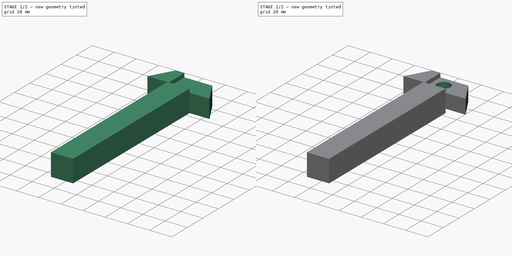
[diagram: build sequence overview — one tinted view per stage of 2, left to right]
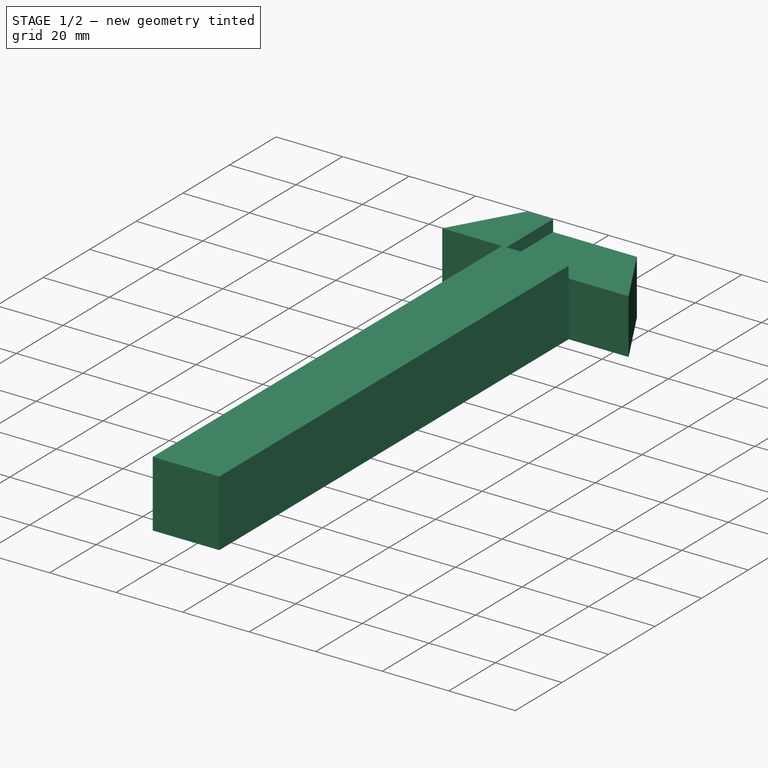
[diagram: stage 1 of 2 — iso view after this stage's code; geometry added in this stage tinted green]
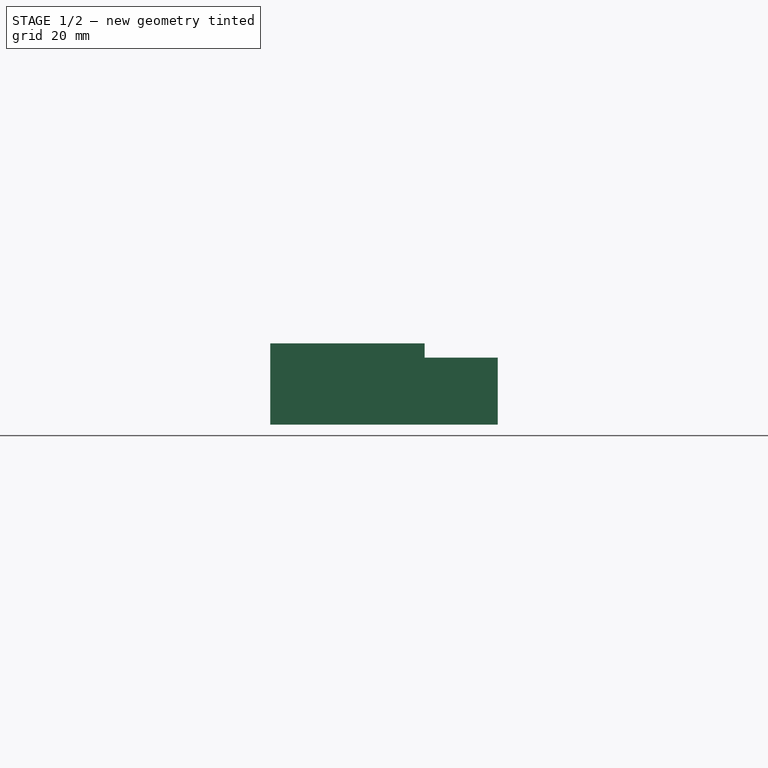
[diagram: stage 1 of 2 — front view after this stage's code; geometry added in this stage tinted green]
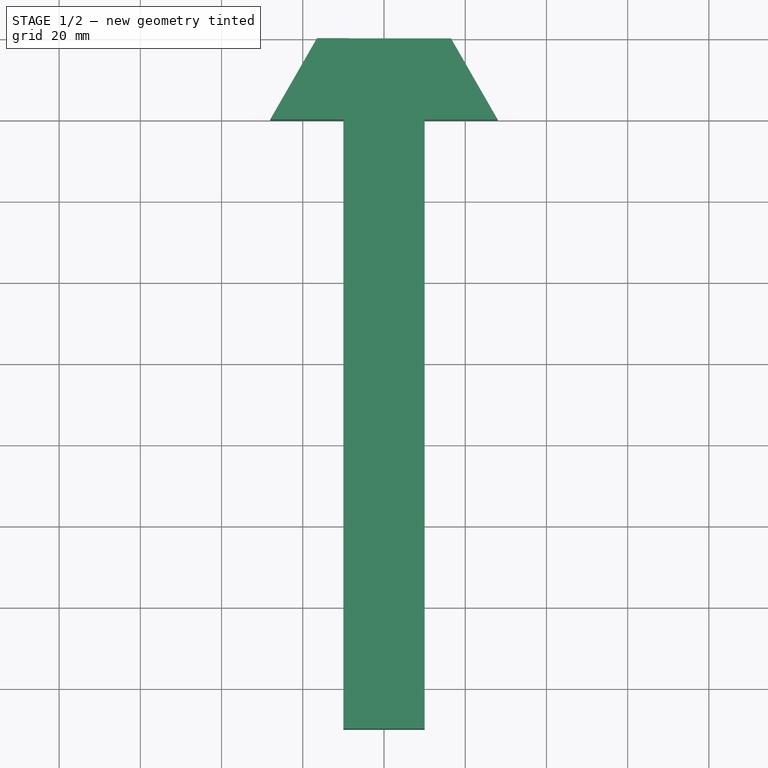
[diagram: stage 1 of 2 — top view after this stage's code; geometry added in this stage tinted green]
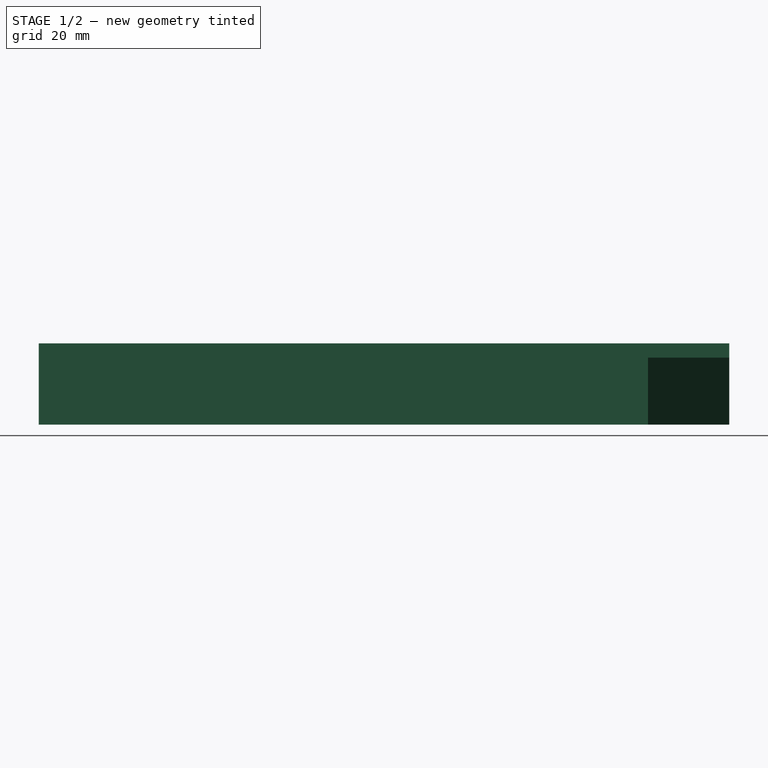
[diagram: stage 1 of 2 — right view after this stage's code; geometry added in this stage tinted green]
FCSTD DOCUMENT  (FreeCAD 0.20R29177 +426 (Git))
Label: front_handle
License: All rights reserved
LicenseURL: http://en.wikipedia.org/wiki/All_rights_reserved
objects: Sketcher::SketchObject×6, PartDesign::Pocket×3, PartDesign::SubShapeBinder×1, PartDesign::Pad×1, PartDesign::Body×1
note: 16 computed .brp shape members not serialized (recipe doc carries the construction recipe); baked Part::Feature solids carry a one-line shape summary decoded from their .brp

FEATURE [Sketcher::SketchObject] Sketch  label="masterSketch"
  FullyConstrained = true
  sketch-geometry (10):
    g0: LineSegment StartX=-28 StartY=6.04e-13 StartZ=0 EndX=-10 EndY=6.04e-13 EndZ=0
    g1: LineSegment StartX=28 StartY=0 StartZ=0 EndX=16.5 EndY=20 EndZ=0
    g2: LineSegment StartX=16.5 StartY=20 StartZ=0 EndX=-16.5 EndY=20 EndZ=0
    g3: LineSegment StartX=-16.5 StartY=20 StartZ=0 EndX=-28 EndY=6.04e-13 EndZ=0
    g4: GeomPoint X=0 Y=20 Z=0
    g5: GeomPoint X=0 Y=6.038e-13 Z=0
    g6: LineSegment StartX=-10 StartY=6.04e-13 StartZ=0 EndX=-10 EndY=-150 EndZ=0
    g7: LineSegment StartX=-10 StartY=-150 StartZ=0 EndX=10 EndY=-150 EndZ=0
    g8: LineSegment StartX=10 StartY=-150 StartZ=0 EndX=10 EndY=5.969e-13 EndZ=0
    g9: LineSegment StartX=10 StartY=5.969e-13 StartZ=0 EndX=28 EndY=0 EndZ=0
  constraints (25):
    c: Coincident(g9,g1)
    c: Coincident(g1,g2)
    c: Coincident(g2,g3)
    c: Coincident(g3,g0)
    c: Horizontal(g0)
    c: Horizontal(g2)
    c: PointOnObject(g9,g-1)
    c: DistanceX(g2,g2) = 33
    c: DistanceX(g0,g9) = 56
    c: Symmetric(g1,g2,g4)
    c: Symmetric(g9,g0,g5)
    c: Vertical(g5,g4)
    c: DistanceY(g5,g4) = 20
    c: PointOnObject(g4,g-2)
    c: Vertical(g6)
    c: Coincident(g6,g7)
    c: Horizontal(g7)
    c: Coincident(g7,g8)
    c: Symmetric(g8,g6,g5)
    c: Coincident(g0,g6)
    c: Coincident(g9,g8)
    c: Equal(g8,g6)
    c: Vertical(g8)
    c: DistanceX(g0,g8) = 20
    c: DistanceY(g8,g8) = 150
FEATURE [PartDesign::SubShapeBinder] Binder
  BindCopyOnChange = 0
  BindMode = 0
  ClaimChildren = false
  Context = -> Body [Binder.]
  Fuse = false
  MakeFace = true
  OffsetFill = false
  OffsetIntersection = false
  OffsetJoinType = 0
  OffsetOpenResult = false
  PartialLoad = false
  Relative = true
  Support = -> [Sketch]
  _Version = 2
FEATURE [Sketcher::SketchObject] Sketch001
  ExternalGeometry = -> [Binder]
  FullyConstrained = true
  MapMode = 5
  Support = -> [XY_Plane]
  sketch-geometry (8):
    g0: LineSegment StartX=-16.5 StartY=20 StartZ=0 EndX=16.5 EndY=20 EndZ=0
    g1: LineSegment StartX=16.5 StartY=20 StartZ=0 EndX=28 EndY=0 EndZ=0
    g2: LineSegment StartX=28 StartY=0 StartZ=0 EndX=10 EndY=3.411e-13 EndZ=0
    g3: LineSegment StartX=10 StartY=3.411e-13 StartZ=0 EndX=10 EndY=-150 EndZ=0
    g4: LineSegment StartX=10 StartY=-150 StartZ=0 EndX=-10 EndY=-150 EndZ=0
    g5: LineSegment StartX=-10 StartY=-150 StartZ=0 EndX=-10 EndY=2.842e-13 EndZ=0
    g6: LineSegment StartX=-10 StartY=2.842e-13 StartZ=0 EndX=-28 EndY=2.949e-13 EndZ=0
    g7: LineSegment StartX=-28 StartY=2.949e-13 StartZ=0 EndX=-16.5 EndY=20 EndZ=0
  constraints (16):
    c: Coincident(g-5,g0)
    c: Coincident(g0,g-4)
    c: Coincident(g0,g1)
    c: Coincident(g1,g-9)
    c: Coincident(g1,g2)
    c: Coincident(g2,g-9)
    c: Coincident(g2,g3)
    c: Coincident(g3,g-10)
    c: Coincident(g3,g4)
    c: Coincident(g4,g-10)
    c: Coincident(g4,g5)
    c: Coincident(g5,g-7)
    c: Coincident(g5,g6)
    c: Coincident(g6,g-6)
    c: Coincident(g6,g7)
    c: Coincident(g7,g0)
FEATURE [PartDesign::Pad] Pad
  Direction = (0,0,1)
  Length = 20
  Length2 = 10
  Profile = -> Sketch001
  ReferenceAxis = -> Sketch001 [N_Axis]
  Type = 0
FEATURE [Sketcher::SketchObject] Sketch002
  ExternalGeometry = -> [Pad]
  FullyConstrained = true
  MapMode = 5
  Placement = pos=(0,0,20) rot=(0,0,1;0rad)
  Support = -> [Pad]
  sketch-geometry (4):
    g0: LineSegment StartX=28 StartY=0 StartZ=0 EndX=-8.68 EndY=0 EndZ=0
    g1: LineSegment StartX=-8.68 StartY=0 StartZ=0 EndX=-8.68 EndY=20 EndZ=0
    g2: LineSegment StartX=-8.68 StartY=20 StartZ=0 EndX=16.5 EndY=20 EndZ=0
    g3: LineSegment StartX=16.5 StartY=20 StartZ=0 EndX=28 EndY=0 EndZ=0
  constraints (10):
    c: Coincident(g-4,g0)
    c: PointOnObject(g0,g-1)
    c: Coincident(g0,g1)
    c: PointOnObject(g1,g-5)
    c: Vertical(g1)
    c: Coincident(g1,g2)
    c: Coincident(g2,g-5)
    c: Coincident(g2,g3)
    c: Coincident(g3,g0)
    c: DistanceX(g0,g0) = 36.68
FEATURE [PartDesign::Pocket] Pocket
  BaseFeature = -> Pad
  Direction = (0,0,-1)
  Length = 3.5
  Length2 = 5
  Profile = -> Sketch002
  ReferenceAxis = -> Sketch002 [N_Axis]
  Type = 0
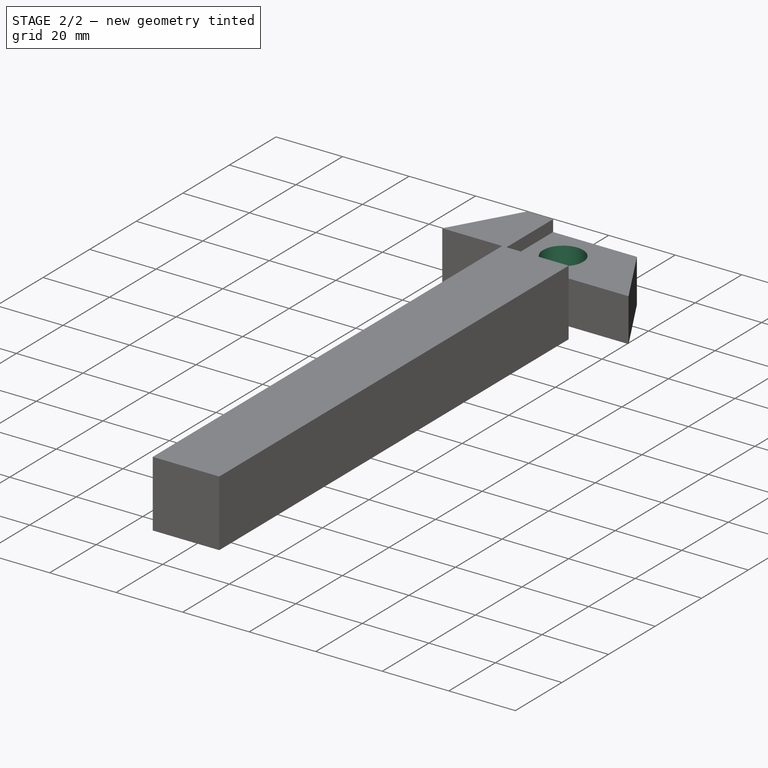
[diagram: stage 2 of 2 — iso view after this stage's code; geometry added in this stage tinted green]
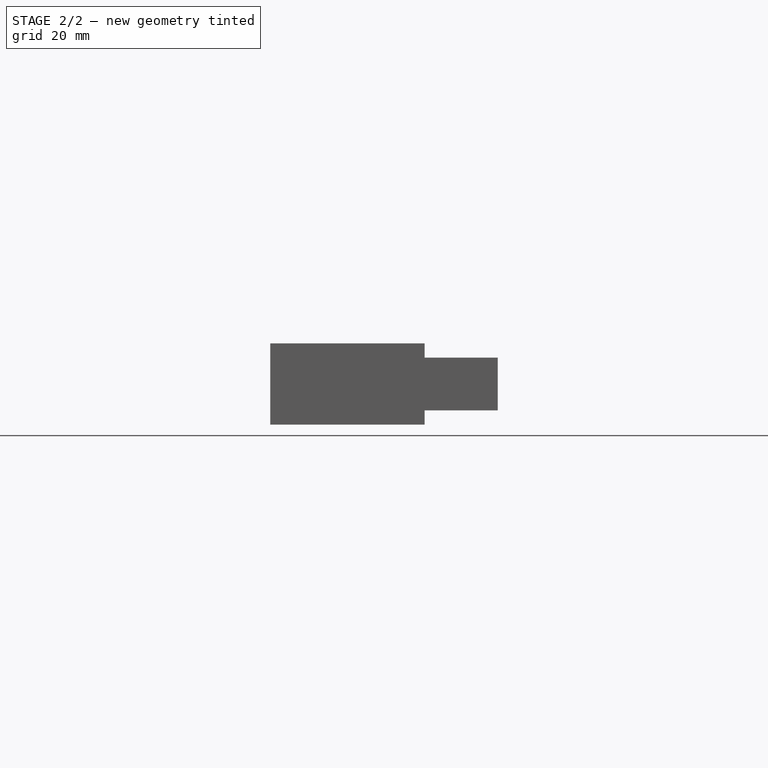
[diagram: stage 2 of 2 — front view after this stage's code; geometry added in this stage tinted green]
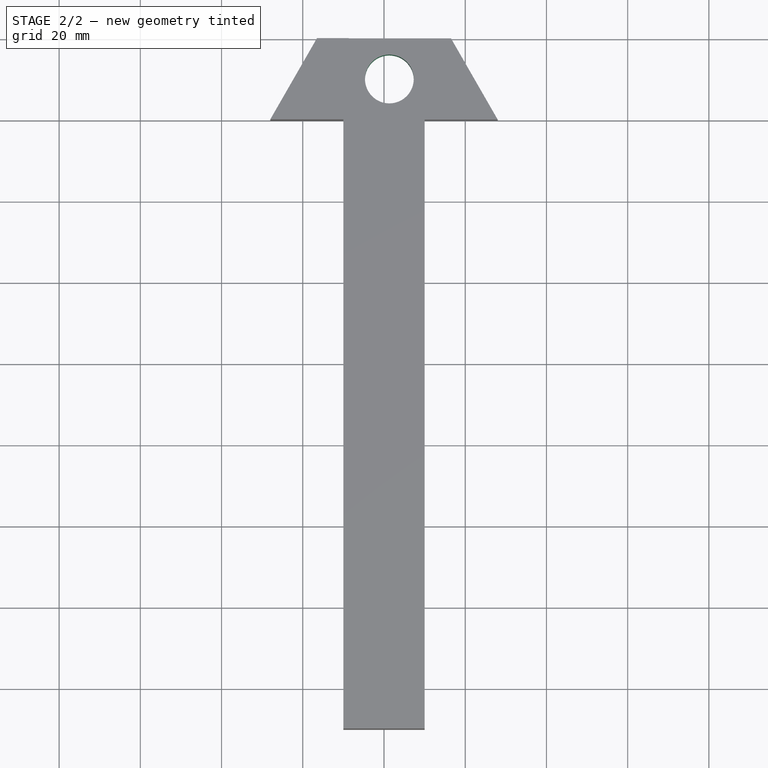
[diagram: stage 2 of 2 — top view after this stage's code; geometry added in this stage tinted green]
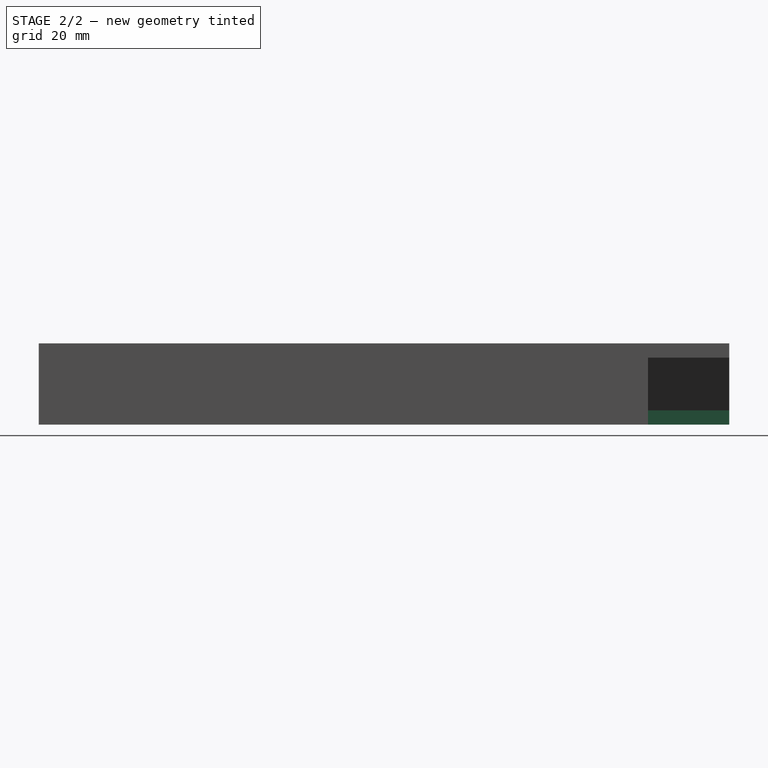
[diagram: stage 2 of 2 — right view after this stage's code; geometry added in this stage tinted green]
FEATURE [Sketcher::SketchObject] Sketch003
  ExternalGeometry = -> [Pocket]
  FullyConstrained = true
  MapMode = 5
  Placement = pos=(0,0,0) rot=(1,0,0;3.14159rad)
  Support = -> [Pocket]
  sketch-geometry (4):
    g0: LineSegment StartX=28 StartY=0 StartZ=0 EndX=-8.68 EndY=0 EndZ=0
    g1: LineSegment StartX=-8.68 StartY=0 StartZ=0 EndX=-8.68 EndY=-20 EndZ=0
    g2: LineSegment StartX=-8.68 StartY=-20 StartZ=0 EndX=16.5 EndY=-20 EndZ=0
    g3: LineSegment StartX=16.5 StartY=-20 StartZ=0 EndX=28 EndY=0 EndZ=0
  constraints (10):
    c: Coincident(g0,g-3)
    c: PointOnObject(g0,g-1)
    c: Coincident(g0,g1)
    c: Coincident(g1,g2)
    c: Coincident(g2,g-5)
    c: Horizontal(g2)
    c: Coincident(g2,g3)
    c: Coincident(g3,g0)
    c: Vertical(g1)
    c: DistanceX(g0,g0) = 36.68
FEATURE [PartDesign::Pocket] Pocket001
  BaseFeature = -> Pocket
  Direction = (0,0,1)
  Length = 3.5
  Length2 = 5
  Profile = -> Sketch003
  ReferenceAxis = -> Sketch003 [N_Axis]
  Type = 0
FEATURE [Sketcher::SketchObject] Sketch004
  ExternalGeometry = -> [Pocket001]
  FullyConstrained = true
  MapMode = 5
  Placement = pos=(0,0,16.5) rot=(0,0,1;0rad)
  Support = -> [Pocket001]
  sketch-geometry (4):
    g0: Circle CenterX=1.32 CenterY=10 CenterZ=0 NormalX=0 NormalY=0 NormalZ=1 AngleXU=0 Radius=6
    g1: GeomPoint X=-4.68 Y=10 Z=0
    g2: GeomPoint X=1.32 Y=20 Z=0
    g3: GeomPoint X=1.32 Y=0 Z=0
  constraints (8):
    c: Radius(g0) = 6
    c: PointOnObject(g1,g0)
    c: Horizontal(g0,g1)
    c: DistanceX(g-3,g1) = 4
    c: PointOnObject(g2,g-4)
    c: PointOnObject(g3,g-1)
    c: Vertical(g2,g3)
    c: Symmetric(g2,g3,g0)
FEATURE [PartDesign::Pocket] Pocket002
  BaseFeature = -> Pocket001
  Direction = (0,0,-1)
  Length = 5
  Length2 = 5
  Profile = -> Sketch004
  ReferenceAxis = -> Sketch004 [N_Axis]
  Type = 1
FEATURE [Sketcher::SketchObject] Sketch005
  ExternalGeometry = -> [Pocket002]
  FullyConstrained = true
  MapMode = 5
  Placement = pos=(0,-150,0) rot=(1,0,0;1.5708rad)
  Support = -> [Pocket002]
  sketch-geometry (6):
    g0: LineSegment StartX=-9 StartY=19 StartZ=0 EndX=-9 EndY=1 EndZ=0
    g1: LineSegment StartX=-9 StartY=1 StartZ=0 EndX=9 EndY=1 EndZ=0
    g2: LineSegment StartX=9 StartY=1 StartZ=0 EndX=9 EndY=19 EndZ=0
    g3: LineSegment StartX=9 StartY=19 StartZ=0 EndX=-9 EndY=19 EndZ=0
    g4: GeomPoint X=0 Y=10 Z=0
    g5: GeomPoint X=0 Y=20 Z=0
  constraints (14):
    c: Coincident(g0,g1)
    c: Coincident(g1,g2)
    c: Coincident(g2,g3)
    c: Coincident(g3,g0)
    c: Horizontal(g1)
    c: Horizontal(g3)
    c: Vertical(g0)
    c: Vertical(g2)
    c: Symmetric(g1,g0,g4)
    c: Equal(g3,g2)
    c: PointOnObject(g5,g-4)
    c: Symmetric(g5,g-1,g4)
    c: PointOnObject(g5,g-2)
    c: DistanceX(g2,g-4) = 1
FEATURE [PartDesign::Body] Body
  Group = -> [Binder,Sketch001,Pad,Sketch002,Pocket,Sketch003,Pocket001,Sketch004,Pocket002,Sketch005]
  Origin = -> Origin
  Tip = -> Pocket002
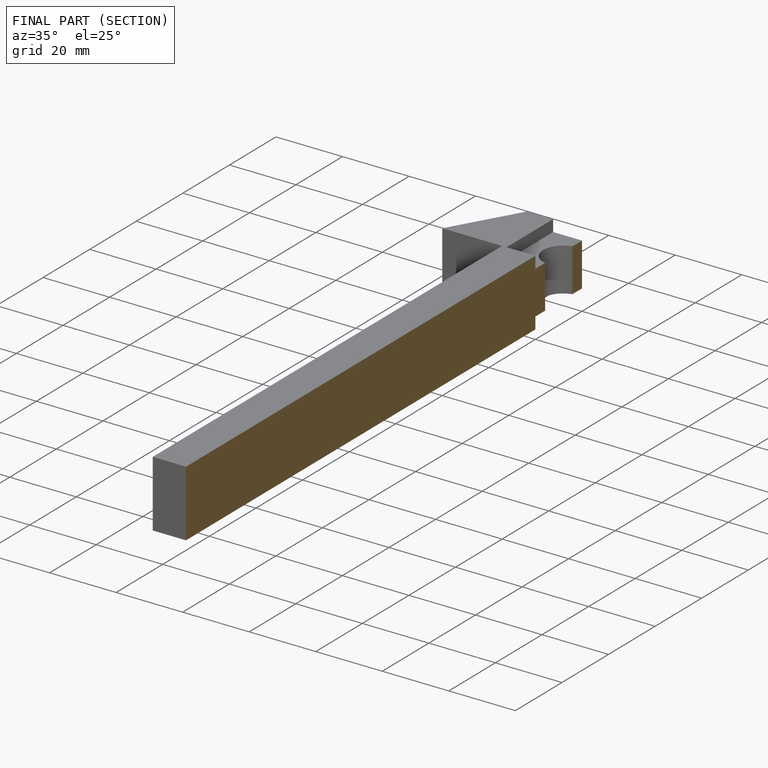
[diagram: finished part — half-section view (interior)]
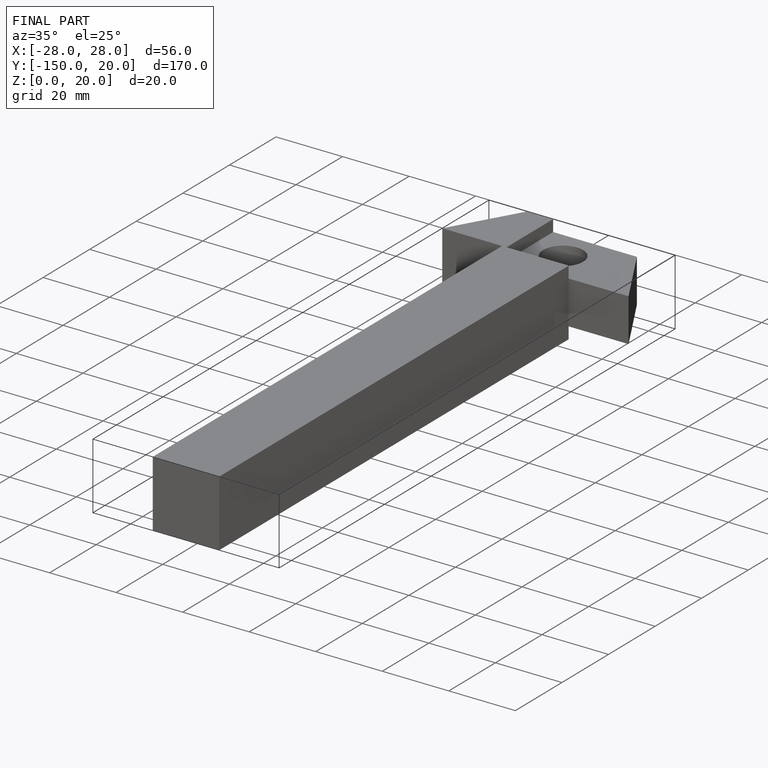
[diagram: finished part — iso view with bounding-box wireframe]
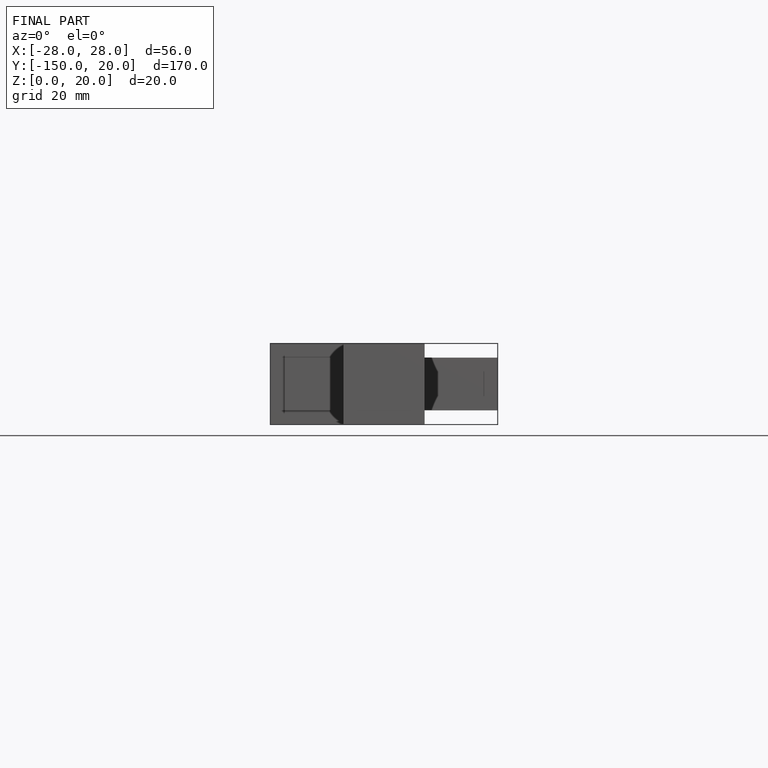
[diagram: finished part — front view with bounding-box wireframe]
